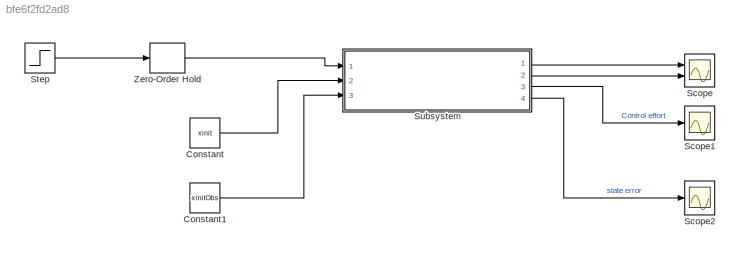
MODEL slx_bfe6f2fd2ad8
KIND model
CONFIG AbsTol = auto
CONFIG EnableMultiTasking = off
CONFIG FixedStep = auto
CONFIG MaxStep = auto
CONFIG MinStep = auto
CONFIG RelTol = 1e-3
CONFIG SampleTimeConstraint = Unconstrained
CONFIG Solver = VariableStepAuto
CONFIG SolverName = VariableStepAuto
CONFIG StartTime = 0.0
CONFIG StopTime = 2
BLOCK [Constant] Constant
  Value = xinit
BLOCK [Constant] Constant1
  Value = xinitObs
BLOCK [Scope] Scope
  Floating = off
  NumInputPorts = 2
  Ports = [2]
  ScopeSpecificationString = Simulink.scopes.TimeScopeBlockCfg('CurrentConfiguration', extmgr.ConfigurationSet(extmgr.Configuration('Core','General UI',true),extmgr.Configuration('Core','Source UI',true),extmgr.Configuration('Sources','WiredSimulink',true),extmgr.Configuration('Visuals','Time Domain',true,'SerializedDisplays',{struct('MinYLimReal','-1.52876','MaxYLimReal','4.46312','YLabelReal','','MinYLimMag','0.00000','MaxY...<+1414ch>
BLOCK [Scope] Scope1
  Floating = off
  NumInputPorts = 1
  Ports = [1]
  ScopeSpecificationString = Simulink.scopes.TimeScopeBlockCfg('CurrentConfiguration', extmgr.ConfigurationSet(extmgr.Configuration('Core','General UI',true),extmgr.Configuration('Core','Source UI',true),extmgr.Configuration('Sources','WiredSimulink',true,'DataLoggingVariableName','ScopeData1'),extmgr.Configuration('Visuals','Time Domain',true,'SerializedDisplays',{struct('MinYLimReal','-1.52876','MaxYLimReal','4.46312','YLab...<+1439ch>
BLOCK [Scope] Scope2
  Floating = off
  NumInputPorts = 1
  Ports = [1]
  ScopeSpecificationString = Simulink.scopes.TimeScopeBlockCfg('CurrentConfiguration', extmgr.ConfigurationSet(extmgr.Configuration('Core','General UI',true),extmgr.Configuration('Core','Source UI',true),extmgr.Configuration('Sources','WiredSimulink',true,'DataLoggingVariableName','ScopeData1'),extmgr.Configuration('Visuals','Time Domain',true,'SerializedDisplays',{struct('MinYLimReal','-1.52876','MaxYLimReal','4.46312','YLab...<+1439ch>
BLOCK [Step] Step
  SampleTime = 0
  Time = 0
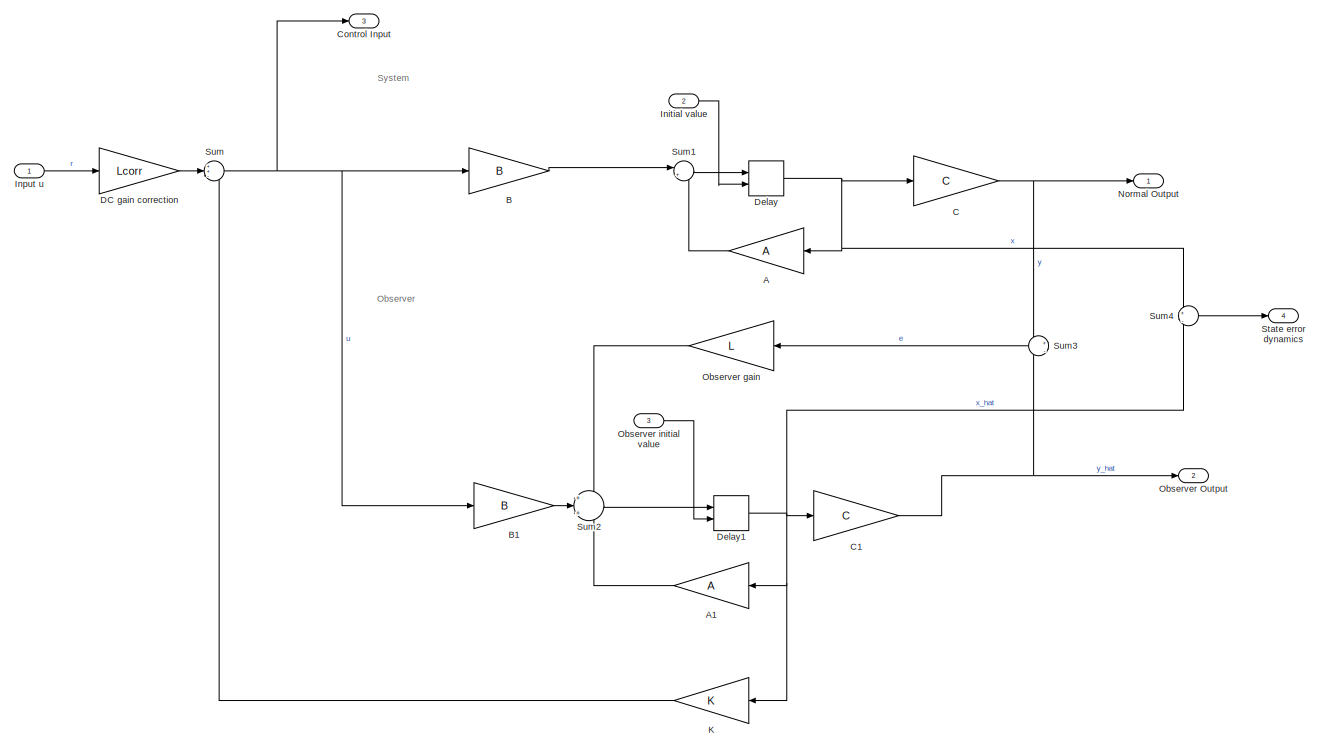
[diagram: Subsystem - part 1/2, most of the canvas]
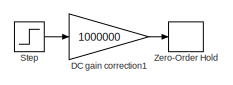
[diagram: Subsystem - part 2/2, top left region]
BLOCK [SubSystem] Subsystem
  Ports = [3, 4]
  RequestExecContextInheritance = off
BLOCK [Gain] Subsystem/A
  Gain = A
  Multiplication = Matrix(K*u)
  OutDataTypeStr = Inherit: Inherit via internal rule
  ParamDataTypeStr = Inherit: Inherit via internal rule
  SaturateOnIntegerOverflow = off
BLOCK [Gain] Subsystem/A1
  Gain = A
  Multiplication = Matrix(K*u)
  OutDataTypeStr = Inherit: Inherit via internal rule
  ParamDataTypeStr = Inherit: Inherit via internal rule
  SaturateOnIntegerOverflow = off
BLOCK [Gain] Subsystem/B
  Gain = B
  Multiplication = Matrix(K*u)
  OutDataTypeStr = Inherit: Inherit via internal rule
  ParamDataTypeStr = Inherit: Inherit via internal rule
  SaturateOnIntegerOverflow = off
BLOCK [Gain] Subsystem/B1
  Gain = B
  Multiplication = Matrix(K*u)
  OutDataTypeStr = Inherit: Inherit via internal rule
  ParamDataTypeStr = Inherit: Inherit via internal rule
  SaturateOnIntegerOverflow = off
BLOCK [Gain] Subsystem/C
  Gain = C
  Multiplication = Matrix(K*u)
  OutDataTypeStr = Inherit: Inherit via internal rule
  ParamDataTypeStr = Inherit: Inherit via internal rule
  SaturateOnIntegerOverflow = off
BLOCK [Gain] Subsystem/C1
  Gain = C
  Multiplication = Matrix(K*u)
  OutDataTypeStr = Inherit: Inherit via internal rule
  ParamDataTypeStr = Inherit: Inherit via internal rule
  SaturateOnIntegerOverflow = off
BLOCK [Outport] Subsystem/Control Input
  IconDisplay = Port number
  Port = 3
BLOCK [Gain] Subsystem/DC gain correction
  Gain = Lcorr
  Multiplication = Matrix(K*u)
  OutDataTypeStr = Inherit: Inherit via internal rule
  ParamDataTypeStr = Inherit: Inherit via internal rule
  SaturateOnIntegerOverflow = off
BLOCK [Gain] Subsystem/DC gain correction1
  Gain = 1000000
  Multiplication = Matrix(K*u)
  OutDataTypeStr = Inherit: Inherit via internal rule
  ParamDataTypeStr = Inherit: Inherit via internal rule
  SaturateOnIntegerOverflow = off
BLOCK [Delay] Subsystem/Delay
  DelayLength = 1
  InitialCondition = 0
  InitialConditionSource = Input port
  InputPortMap = u0,p4
  Ports = [2, 1]
  SampleTime = h
BLOCK [Delay] Subsystem/Delay1
  DelayLength = 1
  InitialConditionSource = Input port
  InputPortMap = u0,p4
  Ports = [2, 1]
  SampleTime = h
BLOCK [Inport] Subsystem/Initial value
  IconDisplay = Port number
  Port = 2
BLOCK [Inport] Subsystem/Input u
  IconDisplay = Port number
BLOCK [Gain] Subsystem/K
  Gain = K
  Multiplication = Matrix(K*u)
  OutDataTypeStr = Inherit: Inherit via internal rule
  ParamDataTypeStr = Inherit: Inherit via internal rule
  SaturateOnIntegerOverflow = off
BLOCK [Outport] Subsystem/Normal Output
  IconDisplay = Port number
BLOCK [Outport] Subsystem/Observer Output
  IconDisplay = Port number
  Port = 2
BLOCK [Gain] Subsystem/Observer gain
  Gain = L
  Multiplication = Matrix(K*u)
  OutDataTypeStr = Inherit: Inherit via internal rule
  ParamDataTypeStr = Inherit: Inherit via internal rule
  SaturateOnIntegerOverflow = off
BLOCK [Inport] Subsystem/Observer initial value
  IconDisplay = Port number
  Port = 3
BLOCK [Outport] Subsystem/State error dynamics
  IconDisplay = Port number
  Port = 4
BLOCK [Step] Subsystem/Step
  SampleTime = 0
BLOCK [Sum] Subsystem/Sum
  IconShape = round
  InputSameDT = off
  Inputs = ++-
  OutDataTypeStr = Inherit: Inherit via internal rule
  Ports = [3, 1]
  SaturateOnIntegerOverflow = off
BLOCK [Sum] Subsystem/Sum1
  IconShape = round
  InputSameDT = off
  Inputs = |++
  OutDataTypeStr = Inherit: Inherit via internal rule
  Ports = [2, 1]
  SaturateOnIntegerOverflow = off
BLOCK [Sum] Subsystem/Sum2
  IconShape = round
  InputSameDT = off
  Inputs = +|+|+
  OutDataTypeStr = Inherit: Inherit via internal rule
  Ports = [3, 1]
  SaturateOnIntegerOverflow = off
BLOCK [Sum] Subsystem/Sum3
  IconShape = round
  InputSameDT = off
  Inputs = +|-
  OutDataTypeStr = Inherit: Inherit via internal rule
  Ports = [2, 1]
  SaturateOnIntegerOverflow = off
BLOCK [Sum] Subsystem/Sum4
  IconShape = round
  InputSameDT = off
  Inputs = +|-
  OutDataTypeStr = Inherit: Inherit via internal rule
  Ports = [2, 1]
  SaturateOnIntegerOverflow = off
BLOCK [ZeroOrderHold] Subsystem/Zero-Order Hold
  SampleTime = h
BLOCK [ZeroOrderHold] Zero-Order Hold
  SampleTime = h
ANNOTATION Subsystem: Observer
ANNOTATION Subsystem: System
LINE Constant1:1 -> Subsystem:3
LINE Constant:1 -> Subsystem:2
LINE Step:1 -> Zero-Order Hold:1
LINE Subsystem/A1:1 -> Subsystem/Sum2:3
LINE Subsystem/A:1 -> Subsystem/Sum1:2
LINE Subsystem/B1:1 -> Subsystem/Sum2:2
LINE Subsystem/B:1 -> Subsystem/Sum1:1
NET Subsystem/C1:1 -> Subsystem/Observer Output:1, Subsystem/Sum3:2
NET Subsystem/C:1 -> Subsystem/Normal Output:1, Subsystem/Sum3:1
LINE Subsystem/DC gain correction1:1 -> Subsystem/Zero-Order Hold:1
LINE Subsystem/DC gain correction:1 -> Subsystem/Sum:2
NET Subsystem/Delay1:1 -> Subsystem/A1:1, Subsystem/C1:1, Subsystem/K:1, Subsystem/Sum4:2
NET Subsystem/Delay:1 -> Subsystem/A:1, Subsystem/C:1, Subsystem/Sum4:1
LINE Subsystem/Initial value:1 -> Subsystem/Delay:2
LINE Subsystem/Input u:1 -> Subsystem/DC gain correction:1
LINE Subsystem/K:1 -> Subsystem/Sum:3
LINE Subsystem/Observer gain:1 -> Subsystem/Sum2:1
LINE Subsystem/Observer initial value:1 -> Subsystem/Delay1:2
LINE Subsystem/Step:1 -> Subsystem/DC gain correction1:1
LINE Subsystem/Sum1:1 -> Subsystem/Delay:1
LINE Subsystem/Sum2:1 -> Subsystem/Delay1:1
LINE Subsystem/Sum3:1 -> Subsystem/Observer gain:1
LINE Subsystem/Sum4:1 -> Subsystem/State error dynamics:1
NET Subsystem/Sum:1 -> Subsystem/B1:1, Subsystem/B:1, Subsystem/Control Input:1
LINE Subsystem:1 -> Scope:1
LINE Subsystem:2 -> Scope:2
LINE Subsystem:3 -> Scope1:1
LINE Subsystem:4 -> Scope2:1
LINE Zero-Order Hold:1 -> Subsystem:1
note: NET lines group one-source signal fan-out (src -> all destinations, sorted); 1:1 wires keep LINE
